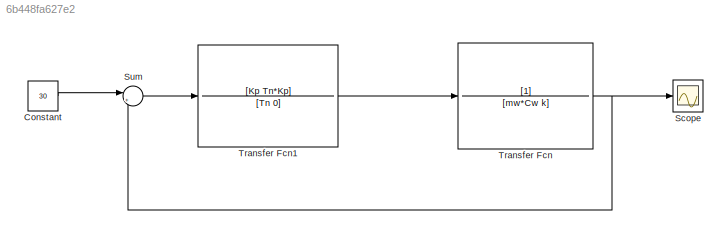
MODEL slx_6b448fa627e2
KIND model
CONFIG AbsTol = auto
CONFIG EnableMultiTasking = off
CONFIG FixedStep = auto
CONFIG MaxStep = auto
CONFIG MinStep = auto
CONFIG RelTol = 1e-3
CONFIG SampleTimeConstraint = Unconstrained
CONFIG SolverName = VariableStepAuto
CONFIG StartTime = 0.0
CONFIG StopTime = 10.0
WORKSPACE source: mxarray member
WORKSPACE Cw: Simulink.Parameter (value not decoded)
WORKSPACE Kp = 5
WORKSPACE Tn = 3
WORKSPACE k: Simulink.Parameter (value not decoded)
WORKSPACE mw: Simulink.Parameter (value not decoded)
BLOCK [Constant] Constant
  Value = 30
BLOCK [Scope] Scope
  Floating = off
  NumInputPorts = 1
  ScopeSpecificationString = Simulink.scopes.TimeScopeBlockCfg('CurrentConfiguration', extmgr.ConfigurationSet(extmgr.Configuration('Core','General UI',true),extmgr.Configuration('Core','Source UI',true),extmgr.Configuration('Sources','WiredSimulink',true),extmgr.Configuration('Visuals','Time Domain',true,'SerializedDisplays',{struct('MinYLimReal','-4.19087','MaxYLimReal','37.71785','YLabelReal','','MinYLimMag','0.00000','Max...<+1336ch>
BLOCK [Sum] Sum
  Inputs = |+-
BLOCK [TransferFcn] Transfer Fcn
  Denominator = [mw*Cw k]
BLOCK [TransferFcn] Transfer Fcn1
  Denominator = [Tn 0]
  Numerator = [Kp Tn*Kp]
  ParameterTunability = Unconstrained
LINE Constant:1 -> Sum:1
LINE Sum:1 -> Transfer Fcn1:1
LINE Transfer Fcn1:1 -> Transfer Fcn:1
NET Transfer Fcn:1 -> Scope:1, Sum:2
note: NET lines group one-source signal fan-out (src -> all destinations, sorted); 1:1 wires keep LINE
